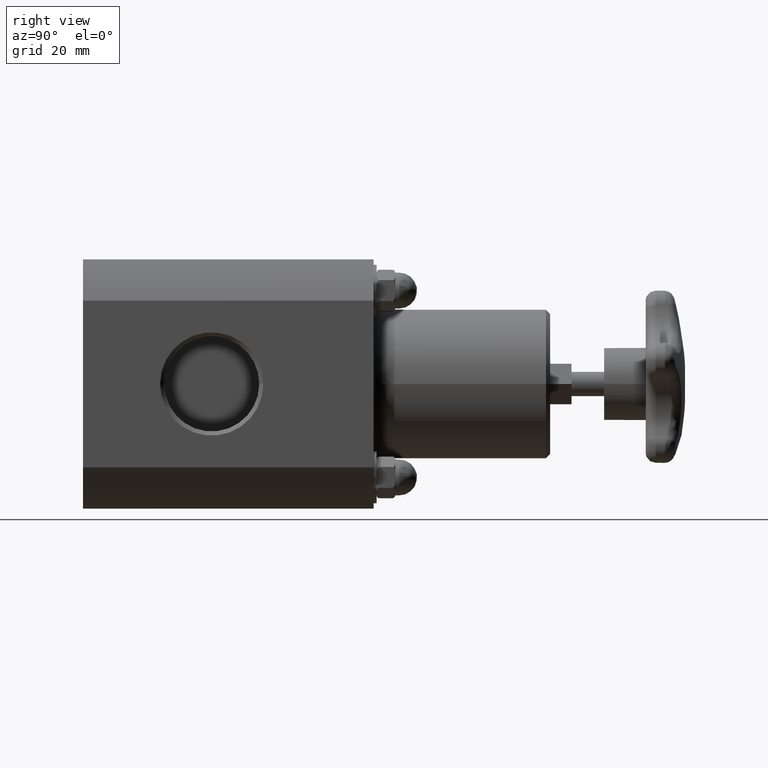
[diagram: clean part render]
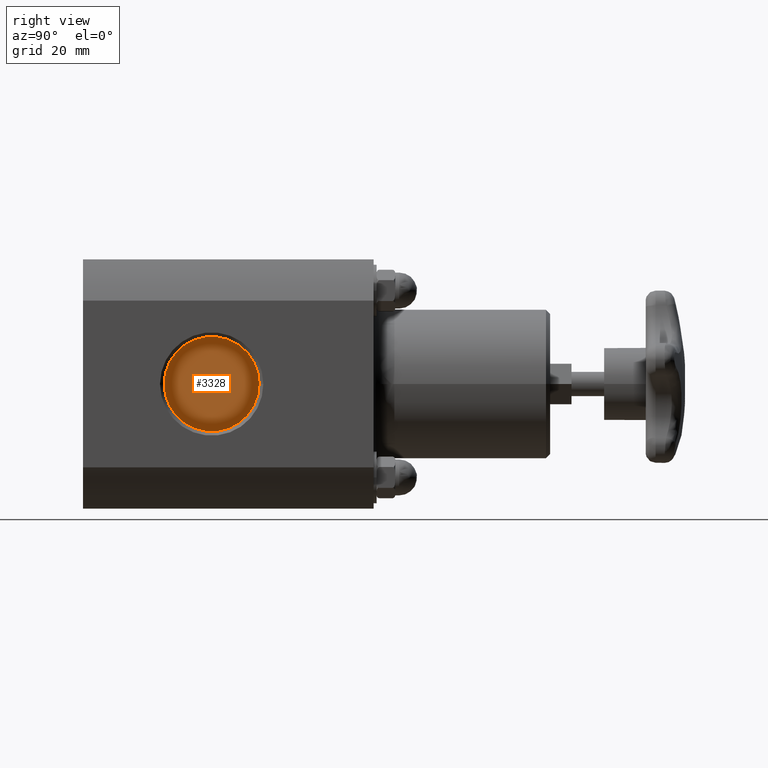
[diagram: same view with one face highlighted and labeled with its STEP entity id]
A machine part, right view. The second image highlights one B-rep face of the part: STEP entity #3328.
In plain terms, the highlighted planar face has unit normal (-1, 0, 0).
Its self-contained STEP definition (entity closure, byte-faithful):
#3312=CARTESIAN_POINT('',(1.0,2.093500000000000,6.807320E-016));
#3313=DIRECTION('',(-1.0,0.0,0.0));
#3314=DIRECTION('',(0.0,0.0,1.0));
#3315=AXIS2_PLACEMENT_3D('',#3312,#3313,#3314);
#3316=PLANE('',#3315);
#3317=CARTESIAN_POINT('',(1.0,2.122000000000000,6.889042E-016));
#3318=VERTEX_POINT('',#3317);
#3319=CARTESIAN_POINT('',(1.000000000000000,1.550000000000000,5.248867E-016));
#3320=DIRECTION('',(1.0,0.0,0.0));
#3321=DIRECTION('',(0.0,1.0,0.0));
#3322=AXIS2_PLACEMENT_3D('',#3319,#3320,#3321);
#3323=CIRCLE('',#3322,0.572000000000000);
#3324=EDGE_CURVE('',#3318,#3318,#3323,.T.);
#3325=ORIENTED_EDGE('',*,*,#3324,.T.);
#3326=EDGE_LOOP('',(#3325));
#3327=FACE_OUTER_BOUND('',#3326,.T.);
#3328=ADVANCED_FACE('',(#3327),#3316,.F.);